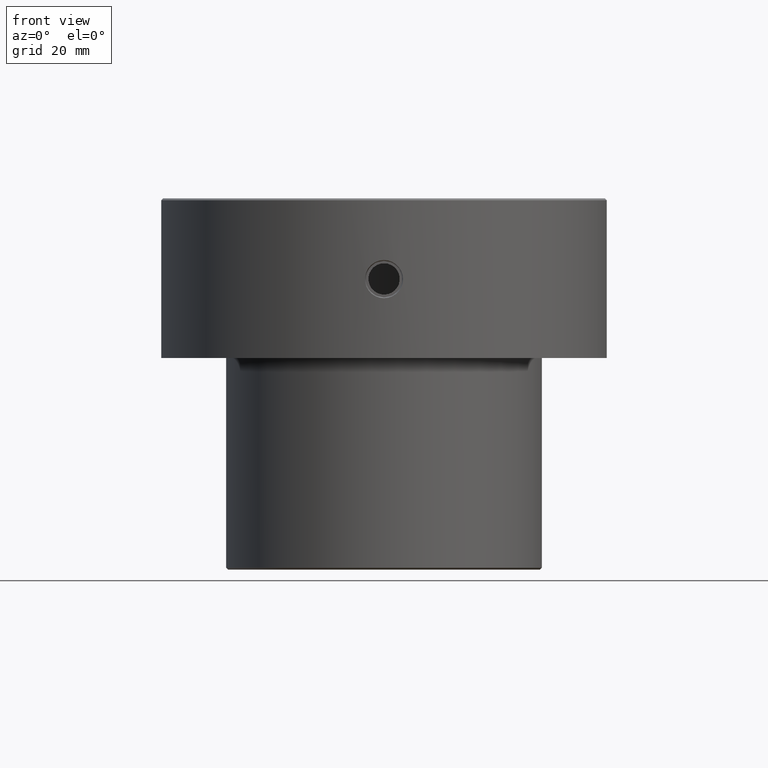
[diagram: clean part render]
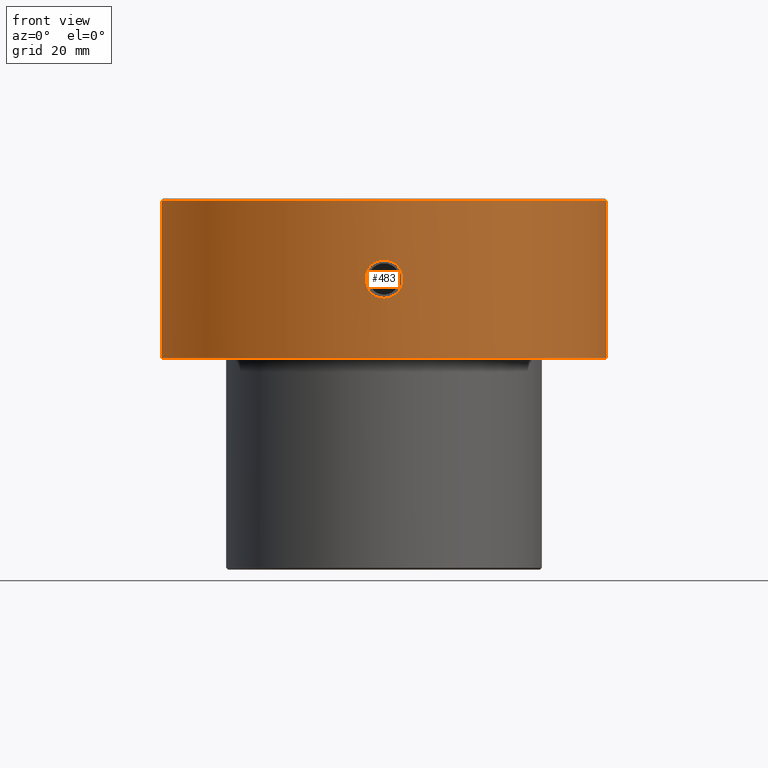
[diagram: same view with one face highlighted and labeled with its STEP entity id]
A machine part, front view. The second image highlights one B-rep face of the part: STEP entity #483.
In plain terms, the highlighted cylindrical surface (partial cylindrical patch) has radius 60 mm, axis along (-0, -0, 1).
Its self-contained STEP definition (entity closure, byte-faithful):
#4 = CARTESIAN_POINT ( 'NONE',  ( 5.005612553672486698, -59.79084306185327335, -22.91696287705984858 ) ) ;
#7 = VERTEX_POINT ( 'NONE', #251 ) ;
#8 = CARTESIAN_POINT ( 'NONE',  ( 3.868814782328906965, -59.87560883568547609, -18.34992625906702557 ) ) ;
#14 = CARTESIAN_POINT ( 'NONE',  ( 3.136572184807668862, -59.91862245681559784, -17.66271839562426749 ) ) ;
#16 = CARTESIAN_POINT ( 'NONE',  ( 60.00000000000000000, 0.000000000000000000, -0.4999999999999796274 ) ) ;
#18 = DIRECTION ( 'NONE',  ( 1.000000000000000000, 0.000000000000000000, 0.000000000000000000 ) ) ;
#24 = EDGE_CURVE ( 'NONE', #1009, #7, #486, .T. ) ;
#28 = LINE ( 'NONE', #1014, #422 ) ;
#30 = CARTESIAN_POINT ( 'NONE',  ( 5.103494840026651325, -59.78259472839837230, -21.07611996814103961 ) ) ;
#50 = CARTESIAN_POINT ( 'NONE',  ( 1.166279132686139031, -59.98889264149693901, -16.73809590519934432 ) ) ;
#52 = CARTESIAN_POINT ( 'NONE',  ( -1.654951896610639350, -59.97798163113541392, -16.86918169930361344 ) ) ;
#59 = CARTESIAN_POINT ( 'NONE',  ( -3.392890526894669634, -59.90447156056805511, -25.62656009414359559 ) ) ;
#62 = CARTESIAN_POINT ( 'NONE',  ( -3.394233923709514489, -59.90439545653060804, -17.87460824929796388 ) ) ;
#64 = ORIENTED_EDGE ( 'NONE', *, *, #1212, .T. ) ;
#74 = CARTESIAN_POINT ( 'NONE',  ( 6.298815348907991794E-16, -60.00000000000000000, -16.60662699999998893 ) ) ;
#87 = CARTESIAN_POINT ( 'NONE',  ( 4.867400257086890392, -59.80226426731227463, -23.40234003167120846 ) ) ;
#89 = ORIENTED_EDGE ( 'NONE', *, *, #583, .F. ) ;
#98 = EDGE_CURVE ( 'NONE', #7, #1009, #197, .T. ) ;
#151 = CARTESIAN_POINT ( 'NONE',  ( -3.133892446774711349, -59.91874750510567083, -25.83902259426039905 ) ) ;
#164 = CARTESIAN_POINT ( 'NONE',  ( -4.875208218984297126, -59.80174531478552780, -23.40457298796985341 ) ) ;
#197 = B_SPLINE_CURVE_WITH_KNOTS ( 'NONE', 3,
 ( #1253, #966, #290, #1235, #582, #572, #675, #490, #392, #679, #778, #1159, #272, #1050, #286, #377, #87, #876, #4, #216, #226, #334, #30, #324, #710, #233, #890, #511, #8, #990, #14, #748, #1211, #456, #923, #1201, #50, #1025, #850, #74 ),
 .UNSPECIFIED., .F., .F.,
 ( 4, 2, 2, 2, 2, 2, 2, 2, 2, 2, 2, 2, 2, 2, 2, 2, 2, 2, 2, 4 ),
 ( 0.004095405123159071362, 0.005100500369167903711, 0.006105595615176736927, 0.006608143238181152235, 0.007110690861185567542, 0.008115786107194404228, 0.009120881353203240047, 0.01012597659921207760, 0.01062852422221649551, 0.01113107184522091342, 0.01213616709122974924, 0.01314126233723858506, 0.01414635758324742087, 0.01515145282925625669, 0.01615654807526509251, 0.01716164332127392833, 0.01816673856728276415, 0.01866928619028718206, 0.01917183381329159997, 0.02017692905930043579 ),
 .UNSPECIFIED. ) ;
#216 = CARTESIAN_POINT ( 'NONE',  ( 5.103448087188714233, -59.78259865512684712, -22.42409519201475376 ) ) ;
#226 = CARTESIAN_POINT ( 'NONE',  ( 5.136837413041311251, -59.77970308888831852, -22.08816684699451116 ) ) ;
#233 = CARTESIAN_POINT ( 'NONE',  ( 4.616407551139440457, -59.82228229204994108, -19.46929791481670691 ) ) ;
#243 = AXIS2_PLACEMENT_3D ( 'NONE', #584, #1068, #18 ) ;
#248 = CARTESIAN_POINT ( 'NONE',  ( -4.085808840166858857, -59.86101819646174960, -24.88560621665943628 ) ) ;
#251 = CARTESIAN_POINT ( 'NONE',  ( 6.845324727837225521E-22, -60.00000000000000000, -26.89337299999998621 ) ) ;
#262 = CARTESIAN_POINT ( 'NONE',  ( 6.298815348907991794E-16, -60.00000000000000000, -16.60662699999998893 ) ) ;
#266 = CARTESIAN_POINT ( 'NONE',  ( -4.617430343385497515, -59.82220291653938915, -19.47140312544978968 ) ) ;
#272 = CARTESIAN_POINT ( 'NONE',  ( 4.086336592822038760, -59.86097785678625627, -24.88463370715550127 ) ) ;
#286 = CARTESIAN_POINT ( 'NONE',  ( 4.616423482476442963, -59.82228182878878897, -24.03082886295979392 ) ) ;
#290 = CARTESIAN_POINT ( 'NONE',  ( 0.6692586062491494570, -59.99718901059083720, -26.86081802806996777 ) ) ;
#302 = DIRECTION ( 'NONE',  ( -0.000000000000000000, -0.000000000000000000, 1.000000000000000000 ) ) ;
#324 = CARTESIAN_POINT ( 'NONE',  ( 4.972930236384428326, -59.79359712298764151, -20.41841324377885414 ) ) ;
#328 = CARTESIAN_POINT ( 'NONE',  ( 0.000000000000000000, 0.000000000000000000, 0.000000000000000000 ) ) ;
#334 = CARTESIAN_POINT ( 'NONE',  ( 5.136716764881199992, -59.77971345599654995, -21.41000074885476678 ) ) ;
#342 = CARTESIAN_POINT ( 'NONE',  ( -4.874496461323841956, -59.80180523205108045, -20.09299204850910670 ) ) ;
#347 = DIRECTION ( 'NONE',  ( -0.000000000000000000, -0.000000000000000000, 1.000000000000000000 ) ) ;
#353 = DIRECTION ( 'NONE',  ( 1.000000000000000000, 0.000000000000000000, 0.000000000000000000 ) ) ;
#361 = ORIENTED_EDGE ( 'NONE', *, *, #428, .T. ) ;
#377 = CARTESIAN_POINT ( 'NONE',  ( 4.810057586331644153, -59.80691881596411719, -23.56292269278795715 ) ) ;
#379 = CIRCLE ( 'NONE', #243, 60.00000000000000000 ) ;
#392 = CARTESIAN_POINT ( 'NONE',  ( 2.716110241862681907, -59.93865559234498619, -26.11882128585108731 ) ) ;
#400 = DIRECTION ( 'NONE',  ( 1.000000000000000000, 0.000000000000000000, 0.000000000000000000 ) ) ;
#422 = VECTOR ( 'NONE', #302, 1000.000000000000000 ) ;
#428 = EDGE_CURVE ( 'NONE', #487, #1111, #379, .T. ) ;
#444 = CARTESIAN_POINT ( 'NONE',  ( -4.460797723607837106, -59.83424284692309669, -24.32272315430116194 ) ) ;
#449 = CARTESIAN_POINT ( 'NONE',  ( -1.334972523834260905, -59.98605396347375063, -26.72804907324348633 ) ) ;
#452 = CARTESIAN_POINT ( 'NONE',  ( -3.872599381372860972, -59.87537384411606922, -18.35389542485611614 ) ) ;
#456 = CARTESIAN_POINT ( 'NONE',  ( 1.811921197494527735, -59.97283454296945138, -16.93430745143562532 ) ) ;
#457 = CARTESIAN_POINT ( 'NONE',  ( -2.276187516567647950, -59.95699318796190624, -17.13606810828719063 ) ) ;
#483 = ADVANCED_FACE ( 'NONE', ( #732, #823 ), #1193, .T. ) ;
#486 = B_SPLINE_CURVE_WITH_KNOTS ( 'NONE', 3,
 ( #262, #1041, #1203, #546, #52, #1132, #457, #946, #742, #647, #62, #452, #1119, #853, #266, #342, #653, #635, #858, #725, #550, #733, #164, #537, #444, #248, #1026, #59, #151, #543, #939, #1045, #449, #1112, #1222, #844 ),
 .UNSPECIFIED., .F., .F.,
 ( 4, 2, 2, 2, 2, 2, 2, 2, 2, 2, 2, 2, 2, 2, 2, 2, 2, 4 ),
 ( 0.02017692905930043926, 0.02118133941276474988, 0.02218574976622905703, 0.02268795494296121235, 0.02319016011969336766, 0.02419457047315767134, 0.02519898082662197850, 0.02620339118008628565, 0.02720780153355059280, 0.02821221188701489996, 0.02921662224047920364, 0.03022103259394351080, 0.03122544294740781795, 0.03222985330087212164, 0.03323426365433643226, 0.03423867400780073594, 0.03524308436126503963, 0.03624749471472935025 ),
 .UNSPECIFIED. ) ;
#487 = VERTEX_POINT ( 'NONE', #637 ) ;
#490 = CARTESIAN_POINT ( 'NONE',  ( 2.569956903251245262, -59.94512013784831339, -26.20657932728730799 ) ) ;
#500 = AXIS2_PLACEMENT_3D ( 'NONE', #328, #347, #353 ) ;
#511 = CARTESIAN_POINT ( 'NONE',  ( 4.085511690621305370, -59.86103569749430164, -18.61419993208327028 ) ) ;
#525 = LINE ( 'NONE', #908, #1128 ) ;
#537 = CARTESIAN_POINT ( 'NONE',  ( -4.619902854489991384, -59.82201012577228738, -24.02332339787123772 ) ) ;
#543 = CARTESIAN_POINT ( 'NONE',  ( -2.577444060477730670, -59.94526141876158931, -26.21165135175434813 ) ) ;
#546 = CARTESIAN_POINT ( 'NONE',  ( -1.334564870160244832, -59.98605924146980328, -16.77188872207099024 ) ) ;
#550 = CARTESIAN_POINT ( 'NONE',  ( -5.104609391736500967, -59.78250002147751019, -22.41703140216938195 ) ) ;
#572 = CARTESIAN_POINT ( 'NONE',  ( 2.121181652099979331, -59.96269291385860356, -26.43736937772831652 ) ) ;
#582 = CARTESIAN_POINT ( 'NONE',  ( 1.657127589293506675, -59.97791043779756848, -26.62991781666021751 ) ) ;
#583 = EDGE_CURVE ( 'NONE', #487, #693, #28, .T. ) ;
#584 = CARTESIAN_POINT ( 'NONE',  ( 0.000000000000000000, 0.000000000000000000, -43.00000000000000000 ) ) ;
#587 = CARTESIAN_POINT ( 'NONE',  ( 0.000000000000000000, 0.000000000000000000, -0.4999999999999796274 ) ) ;
#635 = CARTESIAN_POINT ( 'NONE',  ( -5.103119134412108515, -59.78262731621875758, -21.07278740049722643 ) ) ;
#637 = CARTESIAN_POINT ( 'NONE',  ( -60.00000000000000000, 7.347880794884118356E-15, -43.00000000000000000 ) ) ;
#647 = CARTESIAN_POINT ( 'NONE',  ( -3.133719085722622477, -59.91875566933840247, -17.66086326497475412 ) ) ;
#653 = CARTESIAN_POINT ( 'NONE',  ( -4.971619445419676708, -59.79370664058078688, -20.41326887254816924 ) ) ;
#667 = CARTESIAN_POINT ( 'NONE',  ( 60.00000000000000000, 0.000000000000000000, -43.00000000000000000 ) ) ;
#675 = CARTESIAN_POINT ( 'NONE',  ( 2.272831870379317110, -59.95712086245156769, -26.36559402816300945 ) ) ;
#679 = CARTESIAN_POINT ( 'NONE',  ( 3.136586164436980795, -59.91861633489099148, -25.83716151980333464 ) ) ;
#693 = VERTEX_POINT ( 'NONE', #1180 ) ;
#710 = CARTESIAN_POINT ( 'NONE',  ( 4.873879870680867477, -59.80185592700366470, -20.09113554818728886 ) ) ;
#725 = CARTESIAN_POINT ( 'NONE',  ( -5.136891892529879655, -59.77969840755128672, -22.08337126903461467 ) ) ;
#732 = FACE_OUTER_BOUND ( 'NONE', #764, .T. ) ;
#733 = CARTESIAN_POINT ( 'NONE',  ( -4.973228892054395445, -59.79357273359232039, -23.08130330748432257 ) ) ;
#742 = CARTESIAN_POINT ( 'NONE',  ( -2.716673856973645051, -59.93862738019915071, -17.38158368042123314 ) ) ;
#748 = CARTESIAN_POINT ( 'NONE',  ( 2.573642707756239822, -59.94543990501469466, -17.28585666957580713 ) ) ;
#764 = EDGE_LOOP ( 'NONE', ( #89, #361, #1149, #64 ) ) ;
#778 = CARTESIAN_POINT ( 'NONE',  ( 3.395129289966630992, -59.90433662620570487, -25.62434621544872471 ) ) ;
#786 = ORIENTED_EDGE ( 'NONE', *, *, #24, .F. ) ;
#810 = DIRECTION ( 'NONE',  ( -0.000000000000000000, -0.000000000000000000, 1.000000000000000000 ) ) ;
#823 = FACE_BOUND ( 'NONE', #1020, .T. ) ;
#844 = CARTESIAN_POINT ( 'NONE',  ( 6.845324727837225521E-22, -60.00000000000000000, -26.89337299999998621 ) ) ;
#850 = CARTESIAN_POINT ( 'NONE',  ( 0.3357746474088908473, -60.00000000000000711, -16.60662699999999248 ) ) ;
#853 = CARTESIAN_POINT ( 'NONE',  ( -4.456465187890391810, -59.83456067848378268, -19.17019899823439033 ) ) ;
#858 = CARTESIAN_POINT ( 'NONE',  ( -5.136661841729290856, -59.77971817545689959, -21.41309359910269805 ) ) ;
#876 = CARTESIAN_POINT ( 'NONE',  ( 4.964984462033568136, -59.79424157936875162, -23.07976466236027946 ) ) ;
#890 = CARTESIAN_POINT ( 'NONE',  ( 4.458730702085411224, -59.83439413144561314, -19.17392351310978782 ) ) ;
#908 = CARTESIAN_POINT ( 'NONE',  ( 60.00000000000000000, 0.000000000000000000, 0.000000000000000000 ) ) ;
#923 = CARTESIAN_POINT ( 'NONE',  ( 1.654038690124470579, -59.97741367671423518, -16.87764248545315127 ) ) ;
#938 = CIRCLE ( 'NONE', #1089, 60.00000000000000000 ) ;
#939 = CARTESIAN_POINT ( 'NONE',  ( -2.276338598975934158, -59.95760876496630232, -26.37304756077071843 ) ) ;
#946 = CARTESIAN_POINT ( 'NONE',  ( -2.573008848707849072, -59.94498884157339091, -17.29519065445447268 ) ) ;
#959 = EDGE_CURVE ( 'NONE', #1111, #967, #525, .T. ) ;
#966 = CARTESIAN_POINT ( 'NONE',  ( 0.3353192516437006887, -60.00000000000000000, -26.89337299999998265 ) ) ;
#967 = VERTEX_POINT ( 'NONE', #16 ) ;
#980 = ORIENTED_EDGE ( 'NONE', *, *, #98, .F. ) ;
#982 = DIRECTION ( 'NONE',  ( 0.000000000000000000, 0.000000000000000000, -1.000000000000000000 ) ) ;
#990 = CARTESIAN_POINT ( 'NONE',  ( 3.395295615059284788, -59.90432562804078742, -17.87585028340023285 ) ) ;
#1009 = VERTEX_POINT ( 'NONE', #1094 ) ;
#1014 = CARTESIAN_POINT ( 'NONE',  ( -60.00000000000000000, 7.347880794884118356E-15, 0.000000000000000000 ) ) ;
#1020 = EDGE_LOOP ( 'NONE', ( #980, #786 ) ) ;
#1025 = CARTESIAN_POINT ( 'NONE',  ( 0.6693308349767327359, -59.99718148135699636, -16.63927469450458574 ) ) ;
#1026 = CARTESIAN_POINT ( 'NONE',  ( -3.871257206346193414, -59.87546063890205517, -25.14762598344132982 ) ) ;
#1041 = CARTESIAN_POINT ( 'NONE',  ( -0.3355458436675904377, -60.00000000000002132, -16.60662699999998537 ) ) ;
#1045 = CARTESIAN_POINT ( 'NONE',  ( -1.655170096564954285, -59.97797077412162992, -26.63067294738002388 ) ) ;
#1050 = CARTESIAN_POINT ( 'NONE',  ( 4.458574052464452819, -59.83440426827348091, -24.32624052953638127 ) ) ;
#1068 = DIRECTION ( 'NONE',  ( -0.000000000000000000, -0.000000000000000000, 1.000000000000000000 ) ) ;
#1089 = AXIS2_PLACEMENT_3D ( 'NONE', #587, #982, #400 ) ;
#1094 = CARTESIAN_POINT ( 'NONE',  ( 6.298815348907991794E-16, -60.00000000000000000, -16.60662699999998893 ) ) ;
#1111 = VERTEX_POINT ( 'NONE', #667 ) ;
#1112 = CARTESIAN_POINT ( 'NONE',  ( -0.6753022773418994040, -59.99710650175052251, -26.85984295772100694 ) ) ;
#1119 = CARTESIAN_POINT ( 'NONE',  ( -4.084671716546862896, -59.86109078964461361, -18.61326983062474483 ) ) ;
#1128 = VECTOR ( 'NONE', #810, 1000.000000000000000 ) ;
#1132 = CARTESIAN_POINT ( 'NONE',  ( -2.122225307868850663, -59.96265876630112501, -17.06306252860049355 ) ) ;
#1149 = ORIENTED_EDGE ( 'NONE', *, *, #959, .T. ) ;
#1159 = CARTESIAN_POINT ( 'NONE',  ( 3.869439913249562046, -59.87557001214361208, -25.14941786773755794 ) ) ;
#1180 = CARTESIAN_POINT ( 'NONE',  ( -60.00000000000000000, 7.347880794884118356E-15, -0.4999999999999796274 ) ) ;
#1193 = CYLINDRICAL_SURFACE ( 'NONE', #500, 60.00000000000000000 ) ;
#1201 = CARTESIAN_POINT ( 'NONE',  ( 1.331677132868700042, -59.98543682719939341, -16.77960578962645855 ) ) ;
#1203 = CARTESIAN_POINT ( 'NONE',  ( -0.6762753146267388438, -59.99709174962247715, -16.64033222007250501 ) ) ;
#1211 = CARTESIAN_POINT ( 'NONE',  ( 2.275863457393139555, -59.95762013039359317, -17.12681771910652273 ) ) ;
#1212 = EDGE_CURVE ( 'NONE', #967, #693, #938, .T. ) ;
#1222 = CARTESIAN_POINT ( 'NONE',  ( -0.3350907582184301514, -60.00000000000000000, -26.89337299999998621 ) ) ;
#1235 = CARTESIAN_POINT ( 'NONE',  ( 1.334286197922786910, -59.98608402451881716, -26.72841623235544262 ) ) ;
#1253 = CARTESIAN_POINT ( 'NONE',  ( 6.845324727837225521E-22, -60.00000000000000000, -26.89337299999998621 ) ) ;